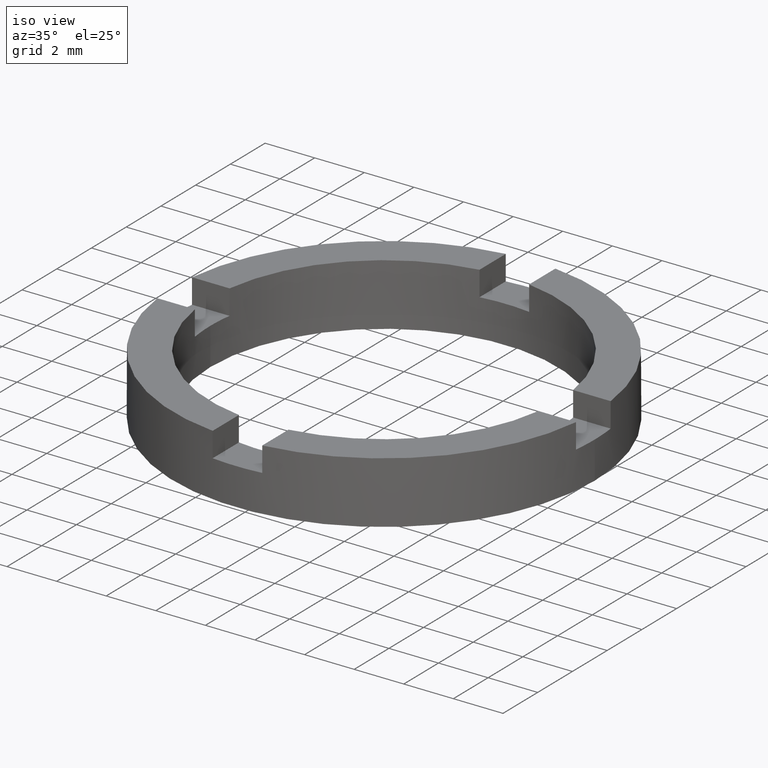
[diagram: clean part render]
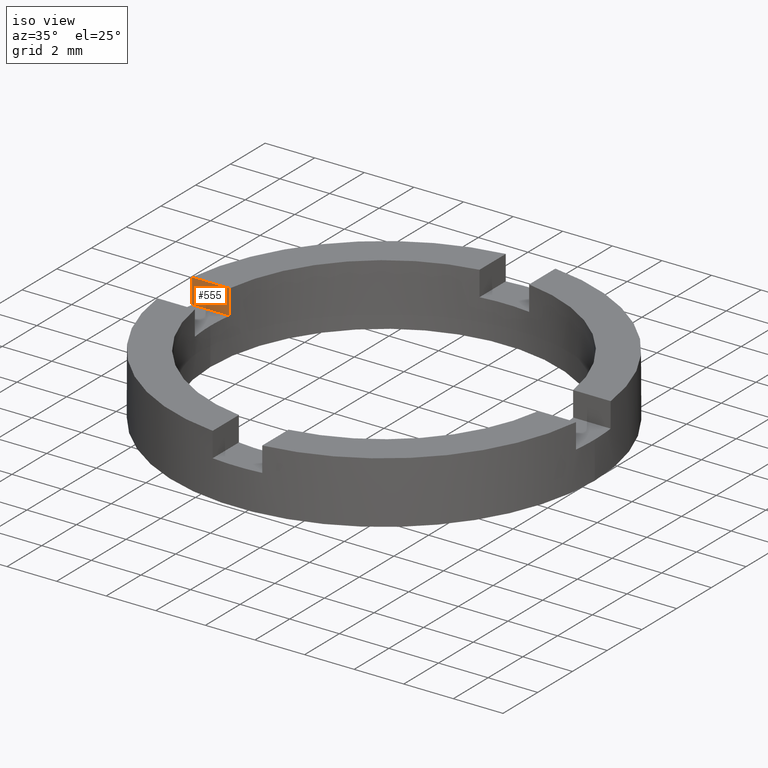
[diagram: same view with one face highlighted and labeled with its STEP entity id]
A machine part, iso view. The second image highlights one B-rep face of the part: STEP entity #555.
In plain terms, the highlighted planar face has unit normal (-0, -1, 0).
Its self-contained STEP definition (entity closure, byte-faithful):
#18 = ORIENTED_EDGE ( 'NONE', *, *, #456, .F. ) ;
#100 = CARTESIAN_POINT ( 'NONE',  ( -8.440971508067063311, 1.000000000000030642, 1.500000000000000000 ) ) ;
#108 = DIRECTION ( 'NONE',  ( -0.000000000000000000, -0.000000000000000000, 1.000000000000000000 ) ) ;
#165 = CARTESIAN_POINT ( 'NONE',  ( -8.440971508067063311, 1.000000000000030642, 1.500000000000000000 ) ) ;
#171 = CARTESIAN_POINT ( 'NONE',  ( -6.928203230275506108, 1.000000000000024869, 2.500000000000000000 ) ) ;
#194 = CARTESIAN_POINT ( 'NONE',  ( 3.750063984832210975E-15, 0.9999999999999988898, 1.500000000000000000 ) ) ;
#200 = ORIENTED_EDGE ( 'NONE', *, *, #717, .T. ) ;
#202 = EDGE_LOOP ( 'NONE', ( #548, #18, #200, #490 ) ) ;
#214 = DIRECTION ( 'NONE',  ( -0.000000000000000000, -0.000000000000000000, 1.000000000000000000 ) ) ;
#229 = VERTEX_POINT ( 'NONE', #100 ) ;
#234 = VERTEX_POINT ( 'NONE', #171 ) ;
#269 = LINE ( 'NONE', #382, #509 ) ;
#297 = LINE ( 'NONE', #165, #593 ) ;
#321 = LINE ( 'NONE', #584, #562 ) ;
#338 = VECTOR ( 'NONE', #108, 1000.000000000000000 ) ;
#345 = DIRECTION ( 'NONE',  ( 1.000000000000000000, -3.750063984832214919E-15, 0.000000000000000000 ) ) ;
#346 = DIRECTION ( 'NONE',  ( 1.000000000000000000, -3.750063984832214919E-15, 0.000000000000000000 ) ) ;
#354 = EDGE_CURVE ( 'NONE', #489, #234, #321, .T. ) ;
#382 = CARTESIAN_POINT ( 'NONE',  ( 3.750063984832210975E-15, 0.9999999999999988898, 1.500000000000000000 ) ) ;
#433 = CARTESIAN_POINT ( 'NONE',  ( -8.440971508067063311, 1.000000000000030642, 2.500000000000000000 ) ) ;
#447 = CARTESIAN_POINT ( 'NONE',  ( -6.928203230275506108, 1.000000000000024869, 1.500000000000000000 ) ) ;
#456 = EDGE_CURVE ( 'NONE', #229, #489, #297, .T. ) ;
#489 = VERTEX_POINT ( 'NONE', #433 ) ;
#490 = ORIENTED_EDGE ( 'NONE', *, *, #669, .T. ) ;
#509 = VECTOR ( 'NONE', #346, 1000.000000000000000 ) ;
#528 = PLANE ( 'NONE',  #727 ) ;
#548 = ORIENTED_EDGE ( 'NONE', *, *, #354, .F. ) ;
#553 = VERTEX_POINT ( 'NONE', #687 ) ;
#555 = ADVANCED_FACE ( 'NONE', ( #597 ), #528, .T. ) ;
#562 = VECTOR ( 'NONE', #345, 1000.000000000000000 ) ;
#584 = CARTESIAN_POINT ( 'NONE',  ( 3.750063984832210975E-15, 0.9999999999999988898, 2.500000000000000000 ) ) ;
#593 = VECTOR ( 'NONE', #214, 1000.000000000000000 ) ;
#596 = LINE ( 'NONE', #447, #338 ) ;
#597 = FACE_OUTER_BOUND ( 'NONE', #202, .T. ) ;
#669 = EDGE_CURVE ( 'NONE', #553, #234, #596, .T. ) ;
#685 = DIRECTION ( 'NONE',  ( -3.750063984832214919E-15, -1.000000000000000000, 0.000000000000000000 ) ) ;
#687 = CARTESIAN_POINT ( 'NONE',  ( -6.928203230275506108, 1.000000000000024869, 1.500000000000000000 ) ) ;
#717 = EDGE_CURVE ( 'NONE', #229, #553, #269, .T. ) ;
#727 = AXIS2_PLACEMENT_3D ( 'NONE', #194, #685, #732 ) ;
#732 = DIRECTION ( 'NONE',  ( 1.000000000000000000, -3.750063984832214919E-15, 0.000000000000000000 ) ) ;